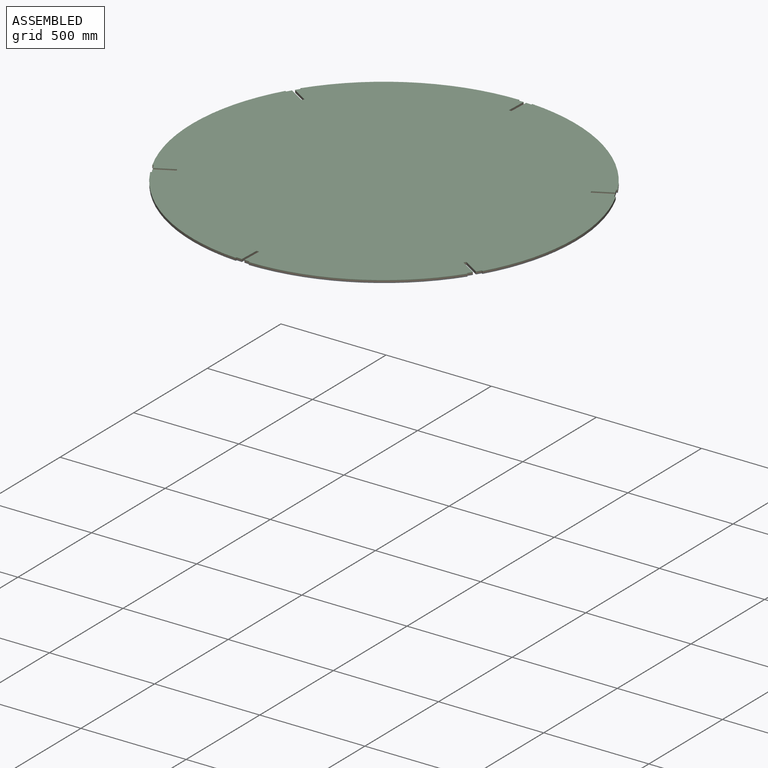
[diagram: assembled view]
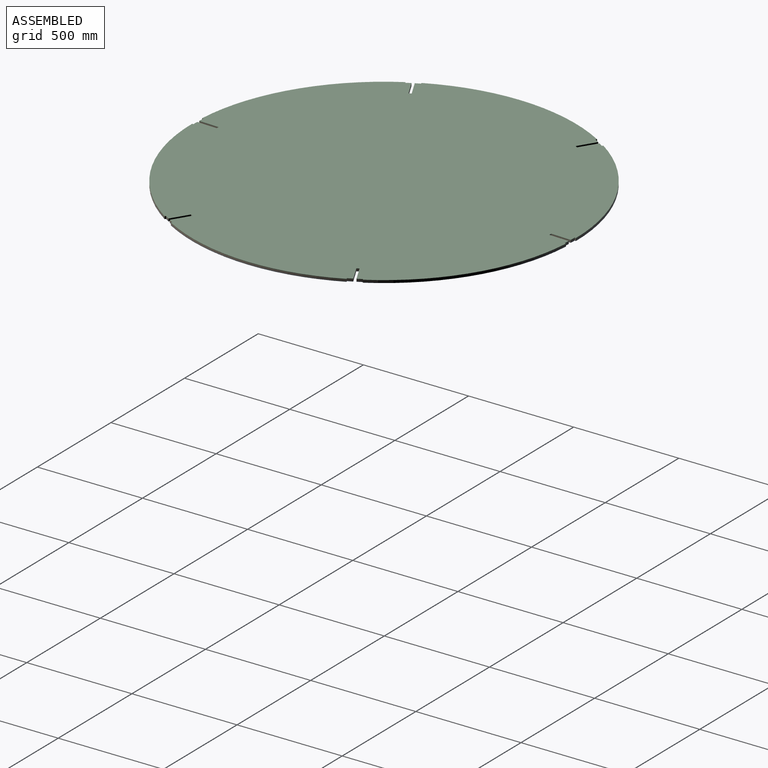
[diagram: assembled view, second angle]
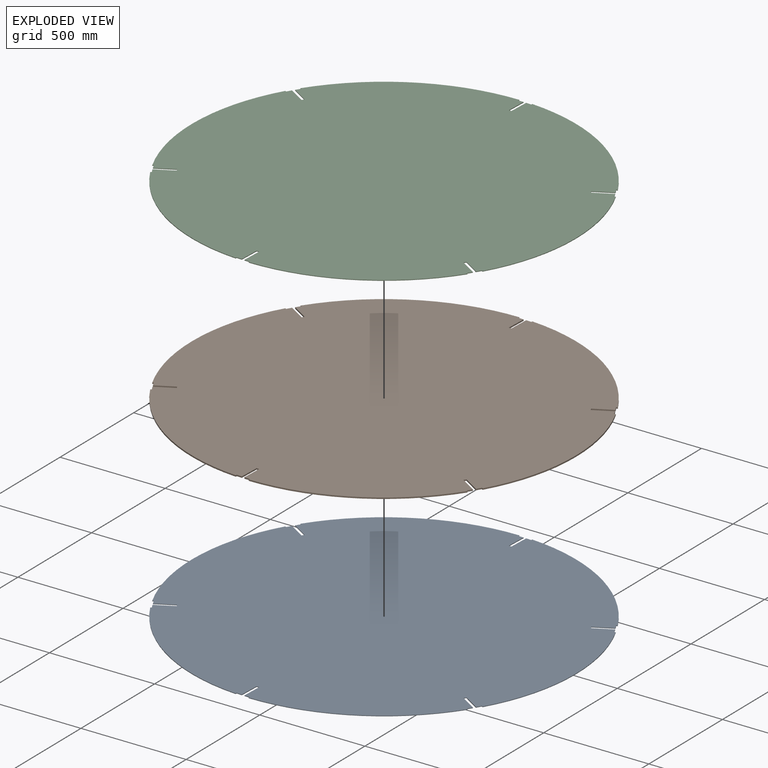
[diagram: exploded view]
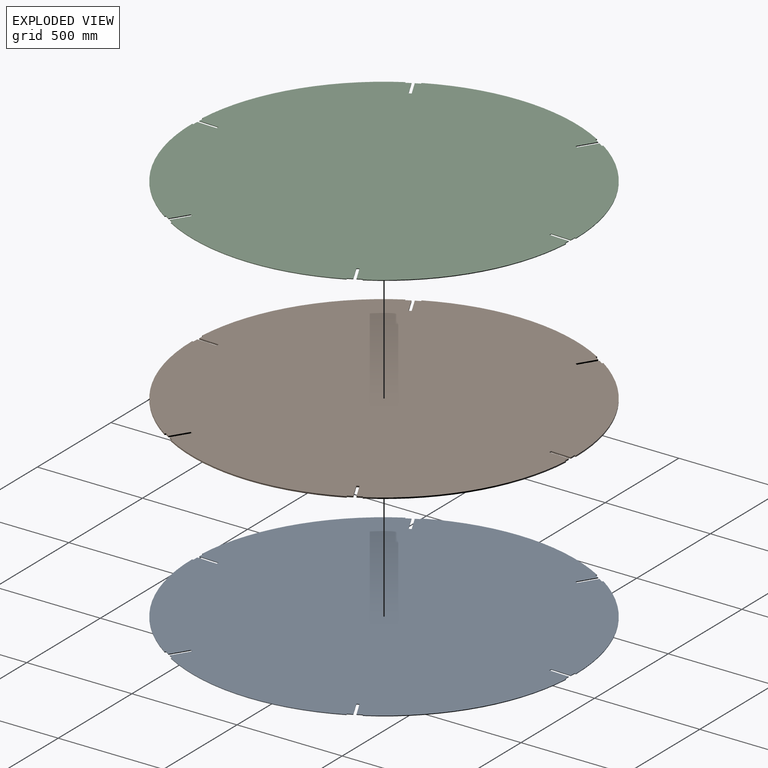
[diagram: exploded view, second angle]
ASSEMBLY  parts=3 mates=2
PART A: 50 faces, bbox 1828.8x1827.7x3.2 mm
  f0: plane 82.47x47.61mm, normal (0.5,0.87,0), area 302.3mm2, adj f3,f4,f23,f46
  f1: plane 82.47x47.61mm, normal (-0.5,-0.87,0), area 302.3mm2, adj f3,f4,f23,f48
  f2: cylinder r=914.4mm len=743.79mm, axis (0,0,1), area 2838.6mm2, adj f3,f4,f27,f49
  f3: plane 1828.8x1827.7mm, normal (0,0,-1), area 2617094.2mm2, adj f0,f1,f2,f5,f6,f7,f8,f9
  f4: plane 1828.8x1827.7mm, normal (0,0,1), area 2617094.2mm2, adj f0,f1,f2,f5,f6,f7,f8,f9
  f5: plane 82.47x47.61mm, normal (-0.5,0.87,0), area 302.3mm2, adj f3,f4,f22,f42
  f6: plane 82.47x47.61mm, normal (0.5,-0.87,0), area 302.3mm2, adj f3,f4,f22,f44
  f7: cylinder r=914.4mm len=858.86mm, axis (0,0,1), area 2838.6mm2, adj f3,f4,f45,f47
  f8: plane 95.23x3.18mm, normal (-1,0,0), area 302.3mm2, adj f3,f4,f21,f38
  f9: plane 95.23x3.18mm, normal (1,0,0), area 302.3mm2, adj f3,f4,f21,f40
  f10: cylinder r=914.4mm len=743.79mm, axis (0,0,1), area 2838.6mm2, adj f3,f4,f41,f43
  f11: plane 82.47x47.61mm, normal (-0.5,-0.87,0), area 302.3mm2, adj f3,f4,f20,f34
  f12: plane 82.47x47.61mm, normal (0.5,0.87,0), area 302.3mm2, adj f3,f4,f20,f36
  f13: cylinder r=914.4mm len=743.79mm, axis (0,0,1), area 2838.6mm2, adj f3,f4,f37,f39
  f14: plane 82.47x47.61mm, normal (0.5,-0.87,0), area 302.3mm2, adj f3,f4,f25,f30
  f15: plane 82.47x47.61mm, normal (-0.5,0.87,0), area 302.3mm2, adj f3,f4,f25,f32
  f16: cylinder r=914.4mm len=858.86mm, axis (0,0,1), area 2838.6mm2, adj f3,f4,f33,f35
  f17: plane 95.23x3.18mm, normal (1,0,0), area 302.3mm2, adj f3,f4,f24,f26
  f18: plane 95.23x3.18mm, normal (-1,0,0), area 302.3mm2, adj f3,f4,f24,f28
  f19: cylinder r=914.4mm len=743.79mm, axis (0,0,1), area 2838.6mm2, adj f3,f4,f29,f31
  f20: plane 11x6.35mm, normal (0.87,-0.5,0), area 40.3mm2, adj f3,f4,f11,f12
  f21: plane 12.7x3.18mm, normal (0,-1,0), area 40.3mm2, adj f3,f4,f8,f9
  f22: plane 11x6.35mm, normal (-0.87,-0.5,0), area 40.3mm2, adj f3,f4,f5,f6
  f23: plane 11x6.35mm, normal (-0.87,0.5,0), area 40.3mm2, adj f0,f1,f3,f4
  f24: plane 12.7x3.18mm, normal (0,1,0), area 40.3mm2, adj f3,f4,f17,f18
  f25: plane 11x6.35mm, normal (0.87,0.5,0), area 40.3mm2, adj f3,f4,f14,f15
  f26: cylinder r=908.05mm len=25.4mm, axis (0,0,1), area 80.7mm2, adj f3,f4,f17,f27
  f27: plane 6.35x3.18mm, normal (1,0,0), area 20.2mm2, adj f2,f3,f4,f26
  f28: cylinder r=908.05mm len=25.4mm, axis (0,0,1), area 80.7mm2, adj f3,f4,f18,f29
  f29: plane 6.35x3.18mm, normal (-1,0,0), area 20.2mm2, adj f3,f4,f19,f28
  f30: cylinder r=908.05mm len=21.73mm, axis (0,0,1), area 80.7mm2, adj f3,f4,f14,f31
  f31: plane 5.5x3.18mm, normal (0.5,-0.87,0), area 20.2mm2, adj f3,f4,f19,f30
  f32: cylinder r=908.05mm len=22.26mm, axis (0,0,1), area 80.7mm2, adj f3,f4,f15,f33
  f33: plane 5.5x3.18mm, normal (-0.5,0.87,0), area 20.2mm2, adj f3,f4,f16,f32
  f34: cylinder r=908.05mm len=22.26mm, axis (0,0,1), area 80.7mm2, adj f3,f4,f11,f35
  f35: plane 5.5x3.18mm, normal (-0.5,-0.87,0), area 20.2mm2, adj f3,f4,f16,f34
  f36: cylinder r=908.05mm len=21.73mm, axis (0,0,1), area 80.7mm2, adj f3,f4,f12,f37
  f37: plane 5.5x3.18mm, normal (0.5,0.87,0), area 20.2mm2, adj f3,f4,f13,f36
  f38: cylinder r=908.05mm len=25.4mm, axis (0,0,1), area 80.7mm2, adj f3,f4,f8,f39
  f39: plane 6.35x3.18mm, normal (-1,0,0), area 20.2mm2, adj f3,f4,f13,f38
  f40: cylinder r=908.05mm len=25.4mm, axis (0,0,1), area 80.7mm2, adj f3,f4,f9,f41
  f41: plane 6.35x3.18mm, normal (1,0,0), area 20.2mm2, adj f3,f4,f10,f40
  f42: cylinder r=908.05mm len=21.73mm, axis (0,0,1), area 80.7mm2, adj f3,f4,f5,f43
  f43: plane 5.5x3.18mm, normal (-0.5,0.87,0), area 20.2mm2, adj f3,f4,f10,f42
  f44: cylinder r=908.05mm len=22.26mm, axis (0,0,1), area 80.7mm2, adj f3,f4,f6,f45
  f45: plane 5.5x3.18mm, normal (0.5,-0.87,0), area 20.2mm2, adj f3,f4,f7,f44
  f46: cylinder r=908.05mm len=22.26mm, axis (0,0,1), area 80.7mm2, adj f0,f3,f4,f47
  f47: plane 5.5x3.18mm, normal (0.5,0.87,0), area 20.2mm2, adj f3,f4,f7,f46
  f48: cylinder r=908.05mm len=21.73mm, axis (0,0,1), area 80.7mm2, adj f1,f3,f4,f49
  f49: plane 5.5x3.18mm, normal (-0.5,-0.87,0), area 20.2mm2, adj f2,f3,f4,f48
PART B: 50 faces, bbox 1828.8x1827.7x6.4 mm
  f0: plane 82.47x47.61mm, normal (0.5,0.87,0), area 604.7mm2, adj f3,f4,f23,f46
  f1: plane 82.47x47.61mm, normal (-0.5,-0.87,0), area 604.7mm2, adj f3,f4,f23,f48
  f2: cylinder r=914.4mm len=743.79mm, axis (0,0,1), area 5677.2mm2, adj f3,f4,f27,f49
  f3: plane 1828.8x1827.7mm, normal (0,0,-1), area 2617094.2mm2, adj f0,f1,f2,f5,f6,f7,f8,f9
  f4: plane 1828.8x1827.7mm, normal (0,0,1), area 2617094.2mm2, adj f0,f1,f2,f5,f6,f7,f8,f9
  f5: plane 82.47x47.61mm, normal (-0.5,0.87,0), area 604.7mm2, adj f3,f4,f22,f42
  f6: plane 82.47x47.61mm, normal (0.5,-0.87,0), area 604.7mm2, adj f3,f4,f22,f44
  f7: cylinder r=914.4mm len=858.86mm, axis (0,0,1), area 5677.2mm2, adj f3,f4,f45,f47
  f8: plane 95.23x6.35mm, normal (-1,0,0), area 604.7mm2, adj f3,f4,f21,f38
  f9: plane 95.23x6.35mm, normal (1,0,0), area 604.7mm2, adj f3,f4,f21,f40
  f10: cylinder r=914.4mm len=743.79mm, axis (0,0,1), area 5677.2mm2, adj f3,f4,f41,f43
  f11: plane 82.47x47.61mm, normal (-0.5,-0.87,0), area 604.7mm2, adj f3,f4,f20,f34
  f12: plane 82.47x47.61mm, normal (0.5,0.87,0), area 604.7mm2, adj f3,f4,f20,f36
  f13: cylinder r=914.4mm len=743.79mm, axis (0,0,1), area 5677.2mm2, adj f3,f4,f37,f39
  f14: plane 82.47x47.61mm, normal (0.5,-0.87,0), area 604.7mm2, adj f3,f4,f25,f30
  f15: plane 82.47x47.61mm, normal (-0.5,0.87,0), area 604.7mm2, adj f3,f4,f25,f32
  f16: cylinder r=914.4mm len=858.86mm, axis (0,0,1), area 5677.2mm2, adj f3,f4,f33,f35
  f17: plane 95.23x6.35mm, normal (1,0,0), area 604.7mm2, adj f3,f4,f24,f26
  f18: plane 95.23x6.35mm, normal (-1,0,0), area 604.7mm2, adj f3,f4,f24,f28
  f19: cylinder r=914.4mm len=743.79mm, axis (0,0,1), area 5677.2mm2, adj f3,f4,f29,f31
  f20: plane 11x6.35mm, normal (0.87,-0.5,0), area 80.6mm2, adj f3,f4,f11,f12
  f21: plane 12.7x6.35mm, normal (0,-1,0), area 80.6mm2, adj f3,f4,f8,f9
  f22: plane 11x6.35mm, normal (-0.87,-0.5,0), area 80.6mm2, adj f3,f4,f5,f6
  f23: plane 11x6.35mm, normal (-0.87,0.5,0), area 80.6mm2, adj f0,f1,f3,f4
  f24: plane 12.7x6.35mm, normal (0,1,0), area 80.6mm2, adj f3,f4,f17,f18
  f25: plane 11x6.35mm, normal (0.87,0.5,0), area 80.6mm2, adj f3,f4,f14,f15
  f26: cylinder r=908.05mm len=25.4mm, axis (0,0,1), area 161.3mm2, adj f3,f4,f17,f27
  f27: plane 6.35x6.35mm, normal (1,0,0), area 40.3mm2, adj f2,f3,f4,f26
  f28: cylinder r=908.05mm len=25.4mm, axis (0,0,1), area 161.3mm2, adj f3,f4,f18,f29
  f29: plane 6.35x6.35mm, normal (-1,0,0), area 40.3mm2, adj f3,f4,f19,f28
  f30: cylinder r=908.05mm len=21.73mm, axis (0,0,1), area 161.3mm2, adj f3,f4,f14,f31
  f31: plane 6.35x5.5mm, normal (0.5,-0.87,0), area 40.3mm2, adj f3,f4,f19,f30
  f32: cylinder r=908.05mm len=22.26mm, axis (0,0,1), area 161.3mm2, adj f3,f4,f15,f33
  f33: plane 6.35x5.5mm, normal (-0.5,0.87,0), area 40.3mm2, adj f3,f4,f16,f32
  f34: cylinder r=908.05mm len=22.26mm, axis (0,0,1), area 161.3mm2, adj f3,f4,f11,f35
  f35: plane 6.35x5.5mm, normal (-0.5,-0.87,0), area 40.3mm2, adj f3,f4,f16,f34
  f36: cylinder r=908.05mm len=21.73mm, axis (0,0,1), area 161.3mm2, adj f3,f4,f12,f37
  f37: plane 6.35x5.5mm, normal (0.5,0.87,0), area 40.3mm2, adj f3,f4,f13,f36
  f38: cylinder r=908.05mm len=25.4mm, axis (0,0,1), area 161.3mm2, adj f3,f4,f8,f39
  f39: plane 6.35x6.35mm, normal (-1,0,0), area 40.3mm2, adj f3,f4,f13,f38
  f40: cylinder r=908.05mm len=25.4mm, axis (0,0,1), area 161.3mm2, adj f3,f4,f9,f41
  f41: plane 6.35x6.35mm, normal (1,0,0), area 40.3mm2, adj f3,f4,f10,f40
  f42: cylinder r=908.05mm len=21.73mm, axis (0,0,1), area 161.3mm2, adj f3,f4,f5,f43
  f43: plane 6.35x5.5mm, normal (-0.5,0.87,0), area 40.3mm2, adj f3,f4,f10,f42
  f44: cylinder r=908.05mm len=22.26mm, axis (0,0,1), area 161.3mm2, adj f3,f4,f6,f45
  f45: plane 6.35x5.5mm, normal (0.5,-0.87,0), area 40.3mm2, adj f3,f4,f7,f44
  f46: cylinder r=908.05mm len=22.26mm, axis (0,0,1), area 161.3mm2, adj f0,f3,f4,f47
  f47: plane 6.35x5.5mm, normal (0.5,0.87,0), area 40.3mm2, adj f3,f4,f7,f46
  f48: cylinder r=908.05mm len=21.73mm, axis (0,0,1), area 161.3mm2, adj f1,f3,f4,f49
  f49: plane 6.35x5.5mm, normal (-0.5,-0.87,0), area 40.3mm2, adj f2,f3,f4,f48
PART C: 50 faces, bbox 1828.8x1827.7x3.2 mm
  f0: cylinder r=914.4mm len=858.86mm, axis (0,0,-1), area 2838.6mm2, adj f1,f2,f45,f47
  f1: plane 1828.8x1827.7mm, normal (0,0,1), area 2617094.2mm2, adj f0,f3,f4,f5,f6,f7,f8,f9
  f2: plane 1828.8x1827.7mm, normal (0,0,-1), area 2617094.2mm2, adj f0,f3,f4,f5,f6,f7,f8,f9
  f3: cylinder r=914.4mm len=743.79mm, axis (0,0,-1), area 2838.6mm2, adj f1,f2,f41,f43
  f4: cylinder r=914.4mm len=743.79mm, axis (0,0,-1), area 2838.6mm2, adj f1,f2,f37,f39
  f5: cylinder r=914.4mm len=858.86mm, axis (0,0,-1), area 2838.6mm2, adj f1,f2,f33,f35
  f6: cylinder r=914.4mm len=743.79mm, axis (0,0,-1), area 2838.6mm2, adj f1,f2,f29,f31
  f7: cylinder r=914.4mm len=743.79mm, axis (0,0,-1), area 2838.6mm2, adj f1,f2,f27,f49
  f8: plane 82.47x47.61mm, normal (-0.5,-0.87,0), area 302.3mm2, adj f1,f2,f25,f34
  f9: plane 82.47x47.61mm, normal (-0.5,0.87,0), area 302.3mm2, adj f1,f2,f10,f32
  f10: plane 11x6.35mm, normal (0.87,0.5,0), area 40.3mm2, adj f1,f2,f9,f11
  f11: plane 82.47x47.61mm, normal (0.5,-0.87,0), area 302.3mm2, adj f1,f2,f10,f30
  f12: plane 95.23x3.18mm, normal (-1,0,0), area 302.3mm2, adj f1,f2,f13,f28
  f13: plane 12.7x3.18mm, normal (0,1,0), area 40.3mm2, adj f1,f2,f12,f14
  f14: plane 95.23x3.18mm, normal (1,0,0), area 302.3mm2, adj f1,f2,f13,f26
  f15: plane 82.47x47.61mm, normal (-0.5,-0.87,0), area 302.3mm2, adj f1,f2,f16,f48
  f16: plane 11x6.35mm, normal (-0.87,0.5,0), area 40.3mm2, adj f1,f2,f15,f17
  f17: plane 82.47x47.61mm, normal (0.5,0.87,0), area 302.3mm2, adj f1,f2,f16,f46
  f18: plane 82.47x47.61mm, normal (0.5,-0.87,0), area 302.3mm2, adj f1,f2,f19,f44
  f19: plane 11x6.35mm, normal (-0.87,-0.5,0), area 40.3mm2, adj f1,f2,f18,f20
  f20: plane 82.47x47.61mm, normal (-0.5,0.87,0), area 302.3mm2, adj f1,f2,f19,f42
  f21: plane 95.23x3.18mm, normal (1,0,0), area 302.3mm2, adj f1,f2,f22,f40
  f22: plane 12.7x3.18mm, normal (0,-1,0), area 40.3mm2, adj f1,f2,f21,f23
  f23: plane 95.23x3.18mm, normal (-1,0,0), area 302.3mm2, adj f1,f2,f22,f38
  f24: plane 82.47x47.61mm, normal (0.5,0.87,0), area 302.3mm2, adj f1,f2,f25,f36
  f25: plane 11x6.35mm, normal (0.87,-0.5,0), area 40.3mm2, adj f1,f2,f8,f24
  f26: cylinder r=908.05mm len=25.4mm, axis (0,0,1), area 80.7mm2, adj f1,f2,f14,f27
  f27: plane 6.35x3.18mm, normal (1,0,0), area 20.2mm2, adj f1,f2,f7,f26
  f28: cylinder r=908.05mm len=25.4mm, axis (0,0,1), area 80.7mm2, adj f1,f2,f12,f29
  f29: plane 6.35x3.18mm, normal (-1,0,0), area 20.2mm2, adj f1,f2,f6,f28
  f30: cylinder r=908.05mm len=21.73mm, axis (0,0,1), area 80.7mm2, adj f1,f2,f11,f31
  f31: plane 5.5x3.18mm, normal (0.5,-0.87,0), area 20.2mm2, adj f1,f2,f6,f30
  f32: cylinder r=908.05mm len=22.26mm, axis (0,0,1), area 80.7mm2, adj f1,f2,f9,f33
  f33: plane 5.5x3.18mm, normal (-0.5,0.87,0), area 20.2mm2, adj f1,f2,f5,f32
  f34: cylinder r=908.05mm len=22.26mm, axis (0,0,1), area 80.7mm2, adj f1,f2,f8,f35
  f35: plane 5.5x3.18mm, normal (-0.5,-0.87,0), area 20.2mm2, adj f1,f2,f5,f34
  f36: cylinder r=908.05mm len=21.73mm, axis (0,0,1), area 80.7mm2, adj f1,f2,f24,f37
  f37: plane 5.5x3.18mm, normal (0.5,0.87,0), area 20.2mm2, adj f1,f2,f4,f36
  f38: cylinder r=908.05mm len=25.4mm, axis (0,0,1), area 80.7mm2, adj f1,f2,f23,f39
  f39: plane 6.35x3.18mm, normal (-1,0,0), area 20.2mm2, adj f1,f2,f4,f38
  f40: cylinder r=908.05mm len=25.4mm, axis (0,0,1), area 80.7mm2, adj f1,f2,f21,f41
  f41: plane 6.35x3.18mm, normal (1,0,0), area 20.2mm2, adj f1,f2,f3,f40
  f42: cylinder r=908.05mm len=21.73mm, axis (0,0,1), area 80.7mm2, adj f1,f2,f20,f43
  f43: plane 5.5x3.18mm, normal (-0.5,0.87,0), area 20.2mm2, adj f1,f2,f3,f42
  f44: cylinder r=908.05mm len=22.26mm, axis (0,0,1), area 80.7mm2, adj f1,f2,f18,f45
  f45: plane 5.5x3.18mm, normal (0.5,-0.87,0), area 20.2mm2, adj f0,f1,f2,f44
  f46: cylinder r=908.05mm len=22.26mm, axis (0,0,1), area 80.7mm2, adj f1,f2,f17,f47
  f47: plane 5.5x3.18mm, normal (0.5,0.87,0), area 20.2mm2, adj f0,f1,f2,f46
  f48: cylinder r=908.05mm len=21.73mm, axis (0,0,1), area 80.7mm2, adj f1,f2,f15,f49
  f49: plane 5.5x3.18mm, normal (-0.5,-0.87,0), area 20.2mm2, adj f1,f2,f7,f48
PLACE A rot(axis=(0,0,-1),62.2deg) t=(1427.25,447.83,0)mm
PLACE B rot(axis=(0,0,-1),62.2deg) t=(1427.25,447.83,0)mm
PLACE C rot(axis=(0,0,-1),62.2deg) t=(1427.25,447.83,0)mm
MATE fastened A.f4 <-> B.f3  axis (0,0,1) through (1399.13,-459.79,-6.35)mm
MATE fastened C.f2 <-> B.f4  axis (0,0,1) through (1399.13,-459.79,0)mm
